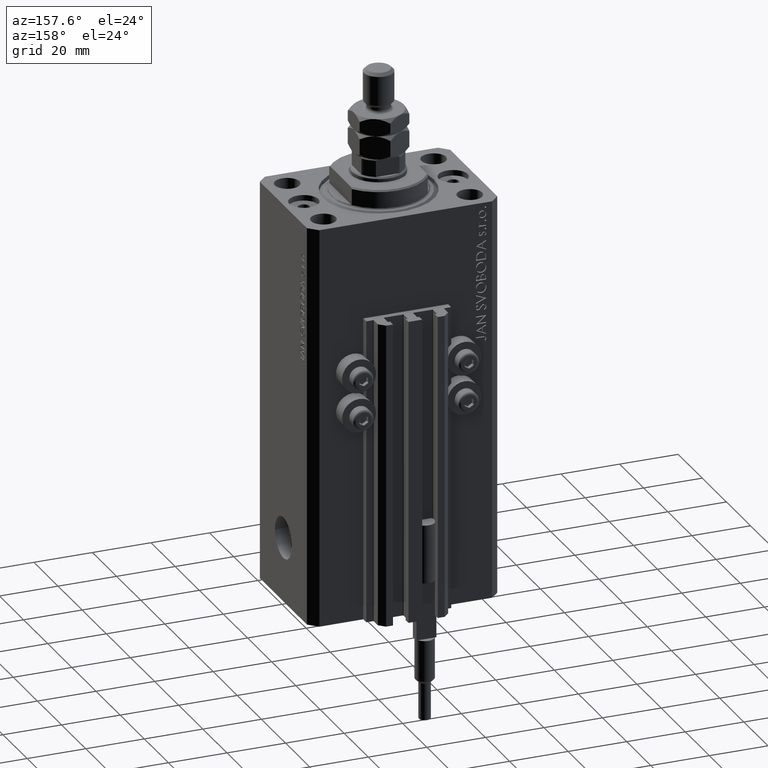
[diagram: clean part render]
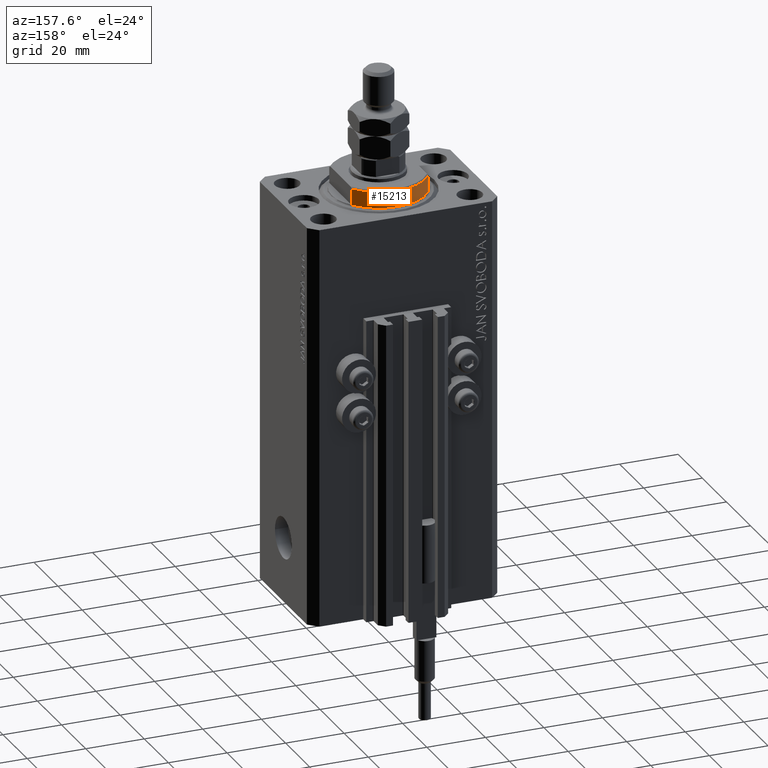
[diagram: same view with one face highlighted and labeled with its STEP entity id]
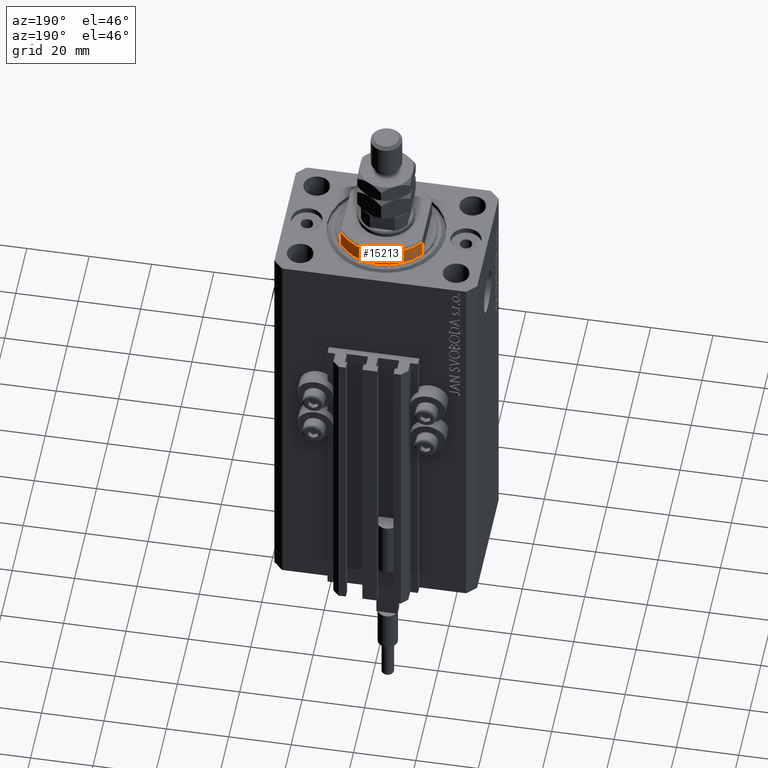
[diagram: same view with one face highlighted and labeled with its STEP entity id]
A machine part, auxiliary view. The second image highlights one B-rep face of the part: STEP entity #15213.
A second angle (auxiliary view) of the same face is appended — the face is thin or edge-on in the first view.
In plain terms, the highlighted cylindrical surface (partial cylindrical patch) has radius 16 mm, axis along (0, 0, -1).
Its self-contained STEP definition (entity closure, byte-faithful):
#1323 = LINE ( 'NONE', #16599, #26607 ) ;
#2067 = DIRECTION ( 'NONE',  ( -0.000000000000000000, -0.000000000000000000, 1.000000000000000000 ) ) ;
#2215 = ORIENTED_EDGE ( 'NONE', *, *, #21023, .T. ) ;
#2502 = CARTESIAN_POINT ( 'NONE',  ( 13.00000000000000000, 9.327379053088813876, -6.500000000000000000 ) ) ;
#2783 = VERTEX_POINT ( 'NONE', #49311 ) ;
#3089 = CIRCLE ( 'NONE', #22299, 16.00000000000000000 ) ;
#3246 = CARTESIAN_POINT ( 'NONE',  ( 13.00000000000000000, 9.327379053088815652, -0.4999999999999995559 ) ) ;
#3509 = DIRECTION ( 'NONE',  ( -0.000000000000000000, -0.000000000000000000, 1.000000000000000000 ) ) ;
#6795 = CARTESIAN_POINT ( 'NONE',  ( 0.000000000000000000, 0.000000000000000000, -6.000000000000030198 ) ) ;
#7012 = CARTESIAN_POINT ( 'NONE',  ( 0.000000000000000000, 0.000000000000000000, -6.500000000000000000 ) ) ;
#7730 = DIRECTION ( 'NONE',  ( -0.000000000000000000, -0.000000000000000000, 1.000000000000000000 ) ) ;
#8365 = CARTESIAN_POINT ( 'NONE',  ( -13.00000000000000000, 9.327379053088815652, -0.4999999999999995559 ) ) ;
#10269 = DIRECTION ( 'NONE',  ( 1.000000000000000000, 0.000000000000000000, 0.000000000000000000 ) ) ;
#11467 = ORIENTED_EDGE ( 'NONE', *, *, #14070, .T. ) ;
#11589 = CIRCLE ( 'NONE', #29986, 16.00000000000000000 ) ;
#13402 = EDGE_CURVE ( 'NONE', #14316, #33472, #40579, .T. ) ;
#13766 = VECTOR ( 'NONE', #7730, 1000.000000000000000 ) ;
#13829 = DIRECTION ( 'NONE',  ( 1.000000000000000000, -8.881784197001252323E-16, 0.000000000000000000 ) ) ;
#14045 = FACE_OUTER_BOUND ( 'NONE', #15258, .T. ) ;
#14070 = EDGE_CURVE ( 'NONE', #2783, #48714, #1323, .T. ) ;
#14316 = VERTEX_POINT ( 'NONE', #25043 ) ;
#14323 = DIRECTION ( 'NONE',  ( -1.000000000000000000, 0.000000000000000000, 0.000000000000000000 ) ) ;
#15213 = ADVANCED_FACE ( 'NONE', ( #14045 ), #45357, .T. ) ;
#15258 = EDGE_LOOP ( 'NONE', ( #44765, #38589, #11467, #2215 ) ) ;
#16599 = CARTESIAN_POINT ( 'NONE',  ( -13.00000000000000000, 9.327379053088813876, -6.500000000000000000 ) ) ;
#21023 = EDGE_CURVE ( 'NONE', #48714, #33472, #11589, .T. ) ;
#22299 = AXIS2_PLACEMENT_3D ( 'NONE', #6795, #40378, #14323 ) ;
#23020 = AXIS2_PLACEMENT_3D ( 'NONE', #7012, #3509, #10269 ) ;
#25043 = CARTESIAN_POINT ( 'NONE',  ( 13.00000000000000000, 9.327379053088916905, -6.000000000000021316 ) ) ;
#26607 = VECTOR ( 'NONE', #2067, 1000.000000000000000 ) ;
#29986 = AXIS2_PLACEMENT_3D ( 'NONE', #32848, #48173, #13829 ) ;
#30606 = EDGE_CURVE ( 'NONE', #14316, #2783, #3089, .T. ) ;
#32848 = CARTESIAN_POINT ( 'NONE',  ( 0.000000000000000000, 0.000000000000000000, -0.4999999999999995559 ) ) ;
#33472 = VERTEX_POINT ( 'NONE', #3246 ) ;
#38589 = ORIENTED_EDGE ( 'NONE', *, *, #30606, .T. ) ;
#40378 = DIRECTION ( 'NONE',  ( 0.000000000000000000, 0.000000000000000000, 1.000000000000000000 ) ) ;
#40579 = LINE ( 'NONE', #2502, #13766 ) ;
#44765 = ORIENTED_EDGE ( 'NONE', *, *, #13402, .F. ) ;
#45357 = CYLINDRICAL_SURFACE ( 'NONE', #23020, 16.00000000000000000 ) ;
#48173 = DIRECTION ( 'NONE',  ( -0.000000000000000000, -0.000000000000000000, -1.000000000000000000 ) ) ;
#48714 = VERTEX_POINT ( 'NONE', #8365 ) ;
#49311 = CARTESIAN_POINT ( 'NONE',  ( -13.00000000000000000, 9.327379053088916905, -6.000000000000021316 ) ) ;